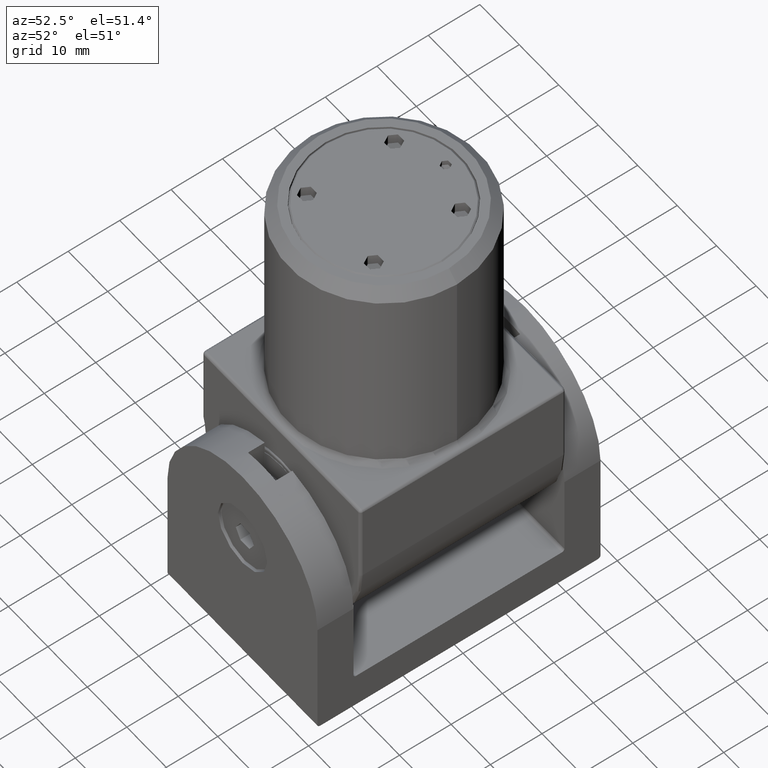
[diagram: clean part render]
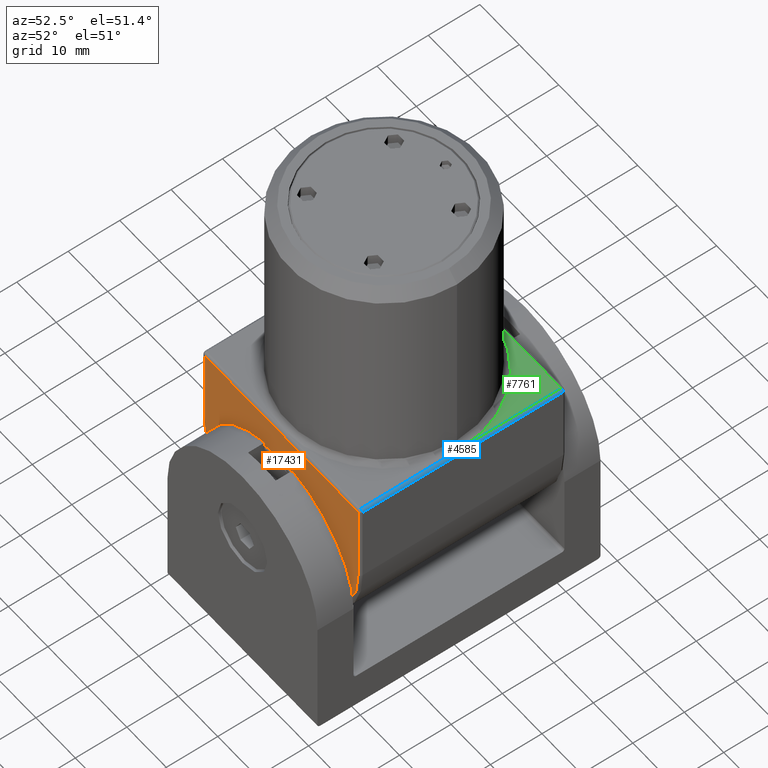
[diagram: same view with three faces highlighted in distinct colors, each labeled with its STEP entity id]
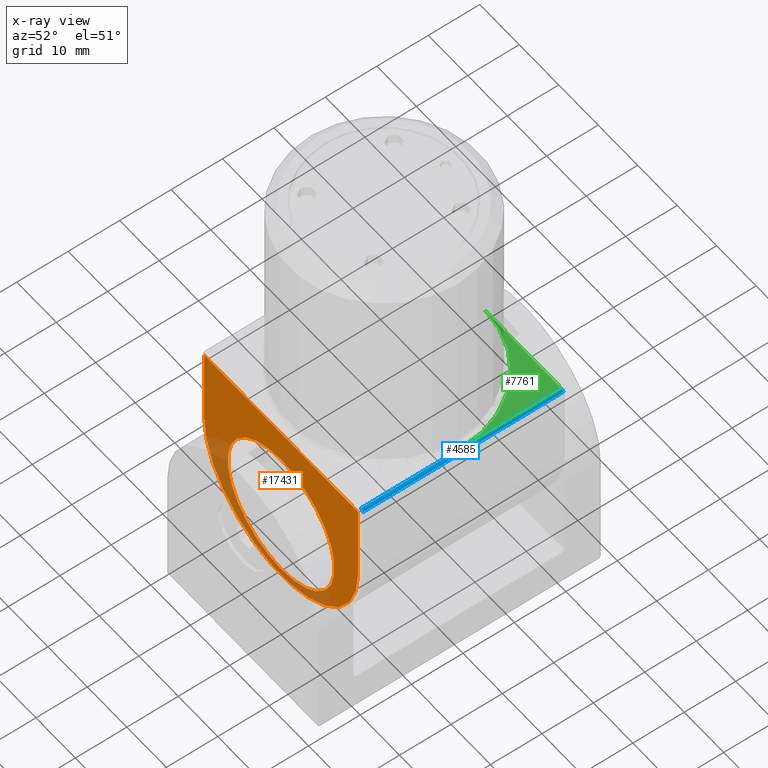
[diagram: x-ray of the same camera — body ghosted, the three highlighted faces saturated]
A machine part, auxiliary view with three faces highlighted in distinct colors.
The next image is the same camera in x-ray (body ghosted, the three faces saturated) — at least one of them is partly hidden behind the body in this view.
Their STEP definitions:

[orange] entity #17431 — the highlighted planar face has unit normal (0, 1, 0).
#15 = DIRECTION ( 'NONE',  ( 0.000000000000000000, 1.000000000000000000, 0.000000000000000000 ) ) ;
#224 = VECTOR ( 'NONE', #13074, 1000.000000000000000 ) ;
#451 = AXIS2_PLACEMENT_3D ( 'NONE', #12880, #8607, #8736 ) ;
#783 = EDGE_CURVE ( 'NONE', #3502, #6889, #15969, .T. ) ;
#820 = CARTESIAN_POINT ( 'NONE',  ( 19.50000000000000355, -20.00000000000000000, -15.99999999999998579 ) ) ;
#1270 = ORIENTED_EDGE ( 'NONE', *, *, #783, .T. ) ;
#1280 = LINE ( 'NONE', #820, #5386 ) ;
#1321 = CARTESIAN_POINT ( 'NONE',  ( 0.000000000000000000, -20.00000000000000000, -15.99999999999998579 ) ) ;
#1606 = EDGE_CURVE ( 'NONE', #9412, #5153, #6346, .T. ) ;
#1644 = ORIENTED_EDGE ( 'NONE', *, *, #15171, .T. ) ;
#2020 = DIRECTION ( 'NONE',  ( -2.168404344971010347E-16, -0.000000000000000000, 1.000000000000000000 ) ) ;
#2913 = DIRECTION ( 'NONE',  ( 0.000000000000000000, 0.000000000000000000, 1.000000000000000000 ) ) ;
#3502 = VERTEX_POINT ( 'NONE', #13955 ) ;
#3572 = VERTEX_POINT ( 'NONE', #11223 ) ;
#3680 = EDGE_LOOP ( 'NONE', ( #4108, #17196, #1644, #5283 ) ) ;
#3961 = EDGE_CURVE ( 'NONE', #3572, #9412, #1280, .T. ) ;
#4024 = DIRECTION ( 'NONE',  ( -2.168404344971010347E-16, 0.000000000000000000, -1.000000000000000000 ) ) ;
#4108 = ORIENTED_EDGE ( 'NONE', *, *, #1606, .T. ) ;
#4334 = PLANE ( 'NONE',  #13082 ) ;
#4423 = EDGE_CURVE ( 'NONE', #5153, #14805, #17005, .T. ) ;
#4482 = ORIENTED_EDGE ( 'NONE', *, *, #10447, .T. ) ;
#5132 = DIRECTION ( 'NONE',  ( 0.000000000000000000, 0.000000000000000000, 1.000000000000000000 ) ) ;
#5153 = VERTEX_POINT ( 'NONE', #14907 ) ;
#5283 = ORIENTED_EDGE ( 'NONE', *, *, #3961, .T. ) ;
#5386 = VECTOR ( 'NONE', #2020, 1000.000000000000000 ) ;
#5537 = CARTESIAN_POINT ( 'NONE',  ( 0.000000000000000000, -20.00000000000000000, -15.99999999999998579 ) ) ;
#5767 = DIRECTION ( 'NONE',  ( -0.000000000000000000, -1.000000000000000000, -0.000000000000000000 ) ) ;
#6085 = DIRECTION ( 'NONE',  ( 0.000000000000000000, 1.000000000000000000, 0.000000000000000000 ) ) ;
#6346 = LINE ( 'NONE', #14419, #224 ) ;
#6349 = CARTESIAN_POINT ( 'NONE',  ( -19.50000000000000355, -20.00000000000000000, -16.00000000000000000 ) ) ;
#6889 = VERTEX_POINT ( 'NONE', #14964 ) ;
#7199 = CARTESIAN_POINT ( 'NONE',  ( 19.50000000000000000, -20.00000000000000000, -0.5000000000000004441 ) ) ;
#7428 = VECTOR ( 'NONE', #4024, 1000.000000000000000 ) ;
#7561 = CARTESIAN_POINT ( 'NONE',  ( 0.000000000000000000, -20.00000000000000000, -20.50000000000000355 ) ) ;
#7704 = FACE_BOUND ( 'NONE', #8558, .T. ) ;
#8558 = EDGE_LOOP ( 'NONE', ( #4482, #1270 ) ) ;
#8607 = DIRECTION ( 'NONE',  ( 0.000000000000000000, 1.000000000000000000, 0.000000000000000000 ) ) ;
#8736 = DIRECTION ( 'NONE',  ( 0.000000000000000000, 0.000000000000000000, 1.000000000000000000 ) ) ;
#9412 = VERTEX_POINT ( 'NONE', #7199 ) ;
#10201 = DIRECTION ( 'NONE',  ( 0.000000000000000000, -0.000000000000000000, 1.000000000000000000 ) ) ;
#10447 = EDGE_CURVE ( 'NONE', #6889, #3502, #12195, .T. ) ;
#10990 = AXIS2_PLACEMENT_3D ( 'NONE', #1321, #5767, #2913 ) ;
#11223 = CARTESIAN_POINT ( 'NONE',  ( 19.50000000000000355, -20.00000000000000000, -15.99999999999998579 ) ) ;
#12195 = CIRCLE ( 'NONE', #451, 13.49999999999998401 ) ;
#12266 = AXIS2_PLACEMENT_3D ( 'NONE', #7561, #6085, #5132 ) ;
#12880 = CARTESIAN_POINT ( 'NONE',  ( 0.000000000000000000, -20.00000000000000000, -20.50000000000000355 ) ) ;
#13074 = DIRECTION ( 'NONE',  ( -1.000000000000000000, 0.000000000000000000, -0.000000000000000000 ) ) ;
#13082 = AXIS2_PLACEMENT_3D ( 'NONE', #5537, #15, #10201 ) ;
#13955 = CARTESIAN_POINT ( 'NONE',  ( 1.653273178848924895E-15, -20.00000000000000000, -7.000000000000020428 ) ) ;
#14380 = CIRCLE ( 'NONE', #10990, 19.50000000000000355 ) ;
#14419 = CARTESIAN_POINT ( 'NONE',  ( 0.000000000000000000, -20.00000000000000000, -0.5000000000000004441 ) ) ;
#14805 = VERTEX_POINT ( 'NONE', #6349 ) ;
#14907 = CARTESIAN_POINT ( 'NONE',  ( -19.50000000000000000, -20.00000000000000000, -0.5000000000000004441 ) ) ;
#14964 = CARTESIAN_POINT ( 'NONE',  ( 0.000000000000000000, -20.00000000000000000, -33.99999999999998579 ) ) ;
#15171 = EDGE_CURVE ( 'NONE', #14805, #3572, #14380, .T. ) ;
#15969 = CIRCLE ( 'NONE', #12266, 13.49999999999998401 ) ;
#17005 = LINE ( 'NONE', #17352, #7428 ) ;
#17051 = FACE_OUTER_BOUND ( 'NONE', #3680, .T. ) ;
#17196 = ORIENTED_EDGE ( 'NONE', *, *, #4423, .T. ) ;
#17352 = CARTESIAN_POINT ( 'NONE',  ( -19.50000000000000355, -20.00000000000000000, -15.99999999999998579 ) ) ;
#17431 = ADVANCED_FACE ( 'NONE', ( #7704, #17051 ), #4334, .F. ) ;

[blue] entity #4585 — the highlighted cylindrical surface (edge-blend (fillet) strip) has radius 0.5 mm, axis along (0, -1, 0).
#538 = EDGE_CURVE ( 'NONE', #4720, #3813, #3876, .T. ) ;
#785 = LINE ( 'NONE', #3052, #5108 ) ;
#809 = VECTOR ( 'NONE', #11088, 1000.000000000000000 ) ;
#821 = DIRECTION ( 'NONE',  ( -0.000000000000000000, -1.000000000000000000, -0.000000000000000000 ) ) ;
#921 = ORIENTED_EDGE ( 'NONE', *, *, #4937, .F. ) ;
#1185 = DIRECTION ( 'NONE',  ( 0.000000000000000000, 0.000000000000000000, -1.000000000000000000 ) ) ;
#1604 = CARTESIAN_POINT ( 'NONE',  ( 19.50000000000000000, 20.00000000000000000, -0.5000000000000004441 ) ) ;
#3052 = CARTESIAN_POINT ( 'NONE',  ( 19.50000000000000000, 20.00000000000000000, 0.000000000000000000 ) ) ;
#3174 = EDGE_CURVE ( 'NONE', #3417, #16662, #17264, .T. ) ;
#3417 = VERTEX_POINT ( 'NONE', #8941 ) ;
#3438 = DIRECTION ( 'NONE',  ( 0.000000000000000000, 0.000000000000000000, -1.000000000000000000 ) ) ;
#3813 = VERTEX_POINT ( 'NONE', #7394 ) ;
#3876 = CIRCLE ( 'NONE', #17800, 0.5000000000000000000 ) ;
#3996 = DIRECTION ( 'NONE',  ( 0.000000000000000000, -1.000000000000000000, 0.000000000000000000 ) ) ;
#4527 = VERTEX_POINT ( 'NONE', #10332 ) ;
#4585 = ADVANCED_FACE ( 'NONE', ( #14734 ), #11757, .T. ) ;
#4720 = VERTEX_POINT ( 'NONE', #6671 ) ;
#4937 = EDGE_CURVE ( 'NONE', #4720, #3417, #15150, .T. ) ;
#5108 = VECTOR ( 'NONE', #13301, 1000.000000000000000 ) ;
#5191 = DIRECTION ( 'NONE',  ( -0.000000000000000000, 1.000000000000000000, -0.000000000000000000 ) ) ;
#5362 = EDGE_CURVE ( 'NONE', #16662, #4527, #6249, .T. ) ;
#5397 = DIRECTION ( 'NONE',  ( 0.000000000000000000, 0.000000000000000000, 1.000000000000000000 ) ) ;
#5990 = DIRECTION ( 'NONE',  ( 0.000000000000000000, -1.000000000000000000, 0.000000000000000000 ) ) ;
#6249 = LINE ( 'NONE', #7984, #9438 ) ;
#6671 = CARTESIAN_POINT ( 'NONE',  ( 20.00000000000000000, 19.50000000000000000, -0.5000000000000004441 ) ) ;
#7394 = CARTESIAN_POINT ( 'NONE',  ( 19.50000000000000000, 19.50000000000000000, 0.000000000000000000 ) ) ;
#7984 = CARTESIAN_POINT ( 'NONE',  ( 19.50000000000000000, 20.00000000000000000, 0.000000000000000000 ) ) ;
#8941 = CARTESIAN_POINT ( 'NONE',  ( 20.00000000000000000, -19.50000000000000000, -0.5000000000000004441 ) ) ;
#9438 = VECTOR ( 'NONE', #5191, 1000.000000000000000 ) ;
#10081 = EDGE_CURVE ( 'NONE', #4527, #3813, #785, .T. ) ;
#10310 = ORIENTED_EDGE ( 'NONE', *, *, #3174, .F. ) ;
#10332 = CARTESIAN_POINT ( 'NONE',  ( 19.50000000000000000, 0.000000000000000000, 0.000000000000000000 ) ) ;
#11088 = DIRECTION ( 'NONE',  ( 0.000000000000000000, -1.000000000000000000, 0.000000000000000000 ) ) ;
#11262 = CARTESIAN_POINT ( 'NONE',  ( 19.50000000000000000, -19.50000000000000000, 0.000000000000000000 ) ) ;
#11485 = ORIENTED_EDGE ( 'NONE', *, *, #5362, .F. ) ;
#11757 = CYLINDRICAL_SURFACE ( 'NONE', #15471, 0.5000000000000000000 ) ;
#13286 = ORIENTED_EDGE ( 'NONE', *, *, #538, .T. ) ;
#13301 = DIRECTION ( 'NONE',  ( -0.000000000000000000, 1.000000000000000000, -0.000000000000000000 ) ) ;
#14132 = CARTESIAN_POINT ( 'NONE',  ( 19.50000000000000000, 19.50000000000000000, -0.5000000000000004441 ) ) ;
#14734 = FACE_OUTER_BOUND ( 'NONE', #17427, .T. ) ;
#15150 = LINE ( 'NONE', #17006, #809 ) ;
#15471 = AXIS2_PLACEMENT_3D ( 'NONE', #1604, #5990, #3438 ) ;
#16662 = VERTEX_POINT ( 'NONE', #11262 ) ;
#17006 = CARTESIAN_POINT ( 'NONE',  ( 20.00000000000000000, 20.00000000000000000, -0.5000000000000004441 ) ) ;
#17183 = AXIS2_PLACEMENT_3D ( 'NONE', #18735, #3996, #1185 ) ;
#17257 = ORIENTED_EDGE ( 'NONE', *, *, #10081, .F. ) ;
#17264 = CIRCLE ( 'NONE', #17183, 0.5000000000000000000 ) ;
#17427 = EDGE_LOOP ( 'NONE', ( #17257, #11485, #10310, #921, #13286 ) ) ;
#17800 = AXIS2_PLACEMENT_3D ( 'NONE', #14132, #821, #5397 ) ;
#18735 = CARTESIAN_POINT ( 'NONE',  ( 19.50000000000000000, -19.50000000000000000, -0.5000000000000004441 ) ) ;

[green] entity #7761 — the highlighted planar face has unit normal (0, 0, -1).
#470 = DIRECTION ( 'NONE',  ( -1.000000000000000000, 0.000000000000000000, 0.000000000000000000 ) ) ;
#785 = LINE ( 'NONE', #3052, #5108 ) ;
#992 = PLANE ( 'NONE',  #6238 ) ;
#1388 = LINE ( 'NONE', #5656, #15067 ) ;
#1845 = DIRECTION ( 'NONE',  ( 0.000000000000000000, 0.000000000000000000, -1.000000000000000000 ) ) ;
#2235 = VERTEX_POINT ( 'NONE', #3528 ) ;
#2248 = CARTESIAN_POINT ( 'NONE',  ( -20.00000000000000000, 20.00000000000000000, 0.000000000000000000 ) ) ;
#2326 = ORIENTED_EDGE ( 'NONE', *, *, #10723, .T. ) ;
#3052 = CARTESIAN_POINT ( 'NONE',  ( 19.50000000000000000, 20.00000000000000000, 0.000000000000000000 ) ) ;
#3528 = CARTESIAN_POINT ( 'NONE',  ( 0.000000000000000000, 19.50000000000000000, 0.000000000000000000 ) ) ;
#3724 = DIRECTION ( 'NONE',  ( -1.000000000000000000, 0.000000000000000000, -0.000000000000000000 ) ) ;
#3813 = VERTEX_POINT ( 'NONE', #7394 ) ;
#4527 = VERTEX_POINT ( 'NONE', #10332 ) ;
#5108 = VECTOR ( 'NONE', #13301, 1000.000000000000000 ) ;
#5656 = CARTESIAN_POINT ( 'NONE',  ( -20.00000000000000000, 19.50000000000000000, 0.000000000000000000 ) ) ;
#6238 = AXIS2_PLACEMENT_3D ( 'NONE', #2248, #10932, #3724 ) ;
#7394 = CARTESIAN_POINT ( 'NONE',  ( 19.50000000000000000, 19.50000000000000000, 0.000000000000000000 ) ) ;
#7761 = ADVANCED_FACE ( 'NONE', ( #13054 ), #992, .F. ) ;
#7808 = ORIENTED_EDGE ( 'NONE', *, *, #10081, .T. ) ;
#9671 = CIRCLE ( 'NONE', #13733, 19.50000000000000000 ) ;
#9948 = DIRECTION ( 'NONE',  ( -1.000000000000000000, -0.000000000000000000, -0.000000000000000000 ) ) ;
#10081 = EDGE_CURVE ( 'NONE', #4527, #3813, #785, .T. ) ;
#10099 = EDGE_LOOP ( 'NONE', ( #7808, #18776, #2326 ) ) ;
#10332 = CARTESIAN_POINT ( 'NONE',  ( 19.50000000000000000, 0.000000000000000000, 0.000000000000000000 ) ) ;
#10723 = EDGE_CURVE ( 'NONE', #2235, #4527, #9671, .T. ) ;
#10932 = DIRECTION ( 'NONE',  ( 0.000000000000000000, 0.000000000000000000, -1.000000000000000000 ) ) ;
#13054 = FACE_OUTER_BOUND ( 'NONE', #10099, .T. ) ;
#13301 = DIRECTION ( 'NONE',  ( -0.000000000000000000, 1.000000000000000000, -0.000000000000000000 ) ) ;
#13733 = AXIS2_PLACEMENT_3D ( 'NONE', #13751, #1845, #470 ) ;
#13751 = CARTESIAN_POINT ( 'NONE',  ( 0.000000000000000000, 0.000000000000000000, 0.000000000000000000 ) ) ;
#14585 = EDGE_CURVE ( 'NONE', #3813, #2235, #1388, .T. ) ;
#15067 = VECTOR ( 'NONE', #9948, 1000.000000000000000 ) ;
#18776 = ORIENTED_EDGE ( 'NONE', *, *, #14585, .T. ) ;